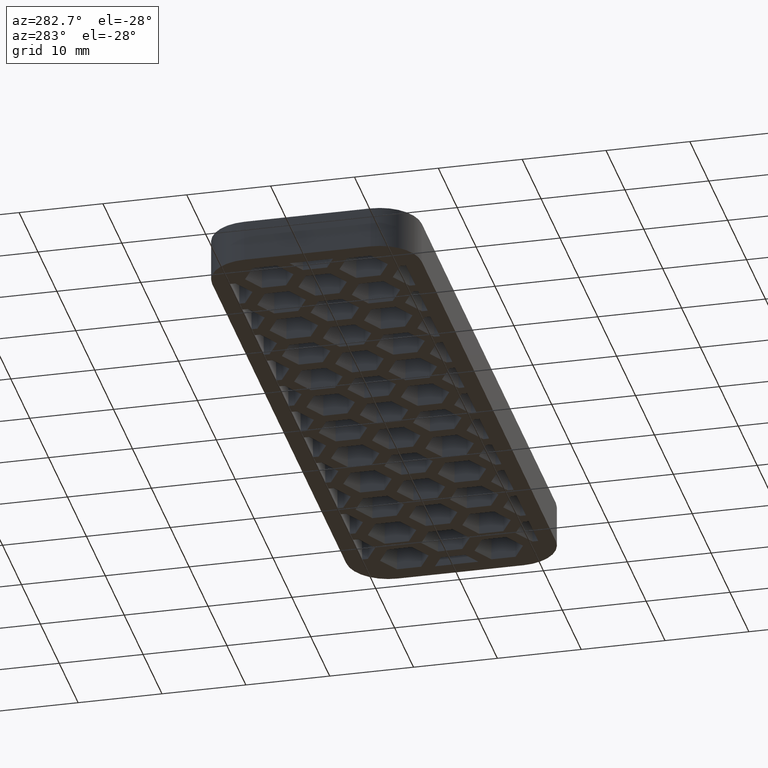
[diagram: clean part render]
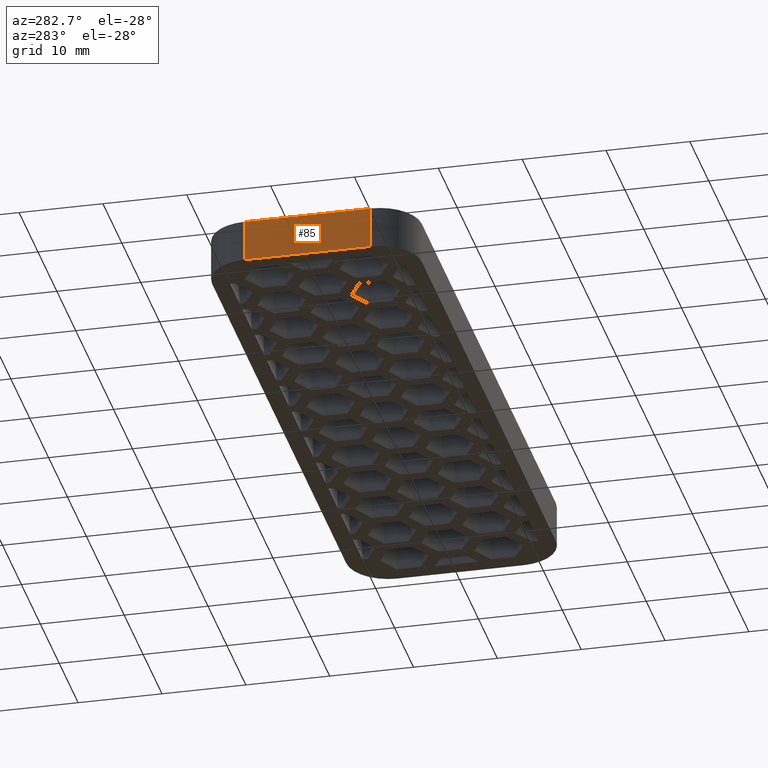
[diagram: same view with one face highlighted and labeled with its STEP entity id]
A machine part, auxiliary view. The second image highlights one B-rep face of the part: STEP entity #85.
In plain terms, the highlighted planar face has unit normal (-1, -0, -0).
Its self-contained STEP definition (entity closure, byte-faithful):
#85 = ADVANCED_FACE( '', ( #596 ), #597, .T. );
#596 = FACE_OUTER_BOUND( '', #1532, .T. );
#597 = PLANE( '', #1533 );
#1532 = EDGE_LOOP( '', ( #2818, #2819, #2820, #2821 ) );
#1533 = AXIS2_PLACEMENT_3D( '', #2822, #2823, #2824 );
#2818 = ORIENTED_EDGE( '', *, *, #6201, .F. );
#2819 = ORIENTED_EDGE( '', *, *, #6262, .F. );
#2820 = ORIENTED_EDGE( '', *, *, #5890, .T. );
#2821 = ORIENTED_EDGE( '', *, *, #6261, .T. );
#2822 = CARTESIAN_POINT( '', ( -40.5000000000000, -7.50000000000000, 99.3873957580092 ) );
#2823 = DIRECTION( '', ( -1.00000000000000, -3.93715391700348E-032, -1.60751816480226E-016 ) );
#2824 = DIRECTION( '', ( -1.01477945012568E-032, 1.00000000000000, -1.81794180051289E-016 ) );
#5890 = EDGE_CURVE( '', #7001, #6999, #7002, .T. );
#6201 = EDGE_CURVE( '', #7615, #7617, #7618, .T. );
#6261 = EDGE_CURVE( '', #6999, #7617, #7734, .T. );
#6262 = EDGE_CURVE( '', #7001, #7615, #7735, .T. );
#6999 = VERTEX_POINT( '', #8839 );
#7001 = VERTEX_POINT( '', #8841 );
#7002 = LINE( '', #8842, #8843 );
#7615 = VERTEX_POINT( '', #9757 );
#7617 = VERTEX_POINT( '', #9759 );
#7618 = LINE( '', #9760, #9761 );
#7734 = LINE( '', #9935, #9936 );
#7735 = LINE( '', #9937, #9938 );
#8839 = CARTESIAN_POINT( '', ( -40.5000000000000, 7.50000000000001, 4.99999999999999 ) );
#8841 = CARTESIAN_POINT( '', ( -40.5000000000000, -7.50000000000001, 4.99999999999999 ) );
#8842 = CARTESIAN_POINT( '', ( -40.5000000000000, 3.06151588455591E-016, 4.99999999999999 ) );
#8843 = VECTOR( '', #11726, 1000.00000000000 );
#9757 = CARTESIAN_POINT( '', ( -40.5000000000000, -7.50000000000001, -1.34185604251311E-014 ) );
#9759 = CARTESIAN_POINT( '', ( -40.5000000000000, 7.50000000000001, -1.43370151904978E-014 ) );
#9760 = CARTESIAN_POINT( '', ( -40.5000000000000, -3.61067054062111E-030, -1.38777878078145E-014 ) );
#9761 = VECTOR( '', #12055, 1000.00000000000 );
#9935 = CARTESIAN_POINT( '', ( -40.5000000000000, 7.50000000000001, 99.3873957580092 ) );
#9936 = VECTOR( '', #12117, 1000.00000000000 );
#9937 = CARTESIAN_POINT( '', ( -40.5000000000000, -7.50000000000000, 99.3873957580092 ) );
#9938 = VECTOR( '', #12118, 1000.00000000000 );
#11726 = DIRECTION( '', ( -2.95286543775261E-032, 1.00000000000000, -6.12303176911189E-017 ) );
#12055 = DIRECTION( '', ( -2.95286543775261E-032, 1.00000000000000, -6.12303176911189E-017 ) );
#12117 = DIRECTION( '', ( 1.60751816480226E-016, -1.81794180051289E-016, -1.00000000000000 ) );
#12118 = DIRECTION( '', ( 1.60751816480226E-016, -1.81794180051289E-016, -1.00000000000000 ) );